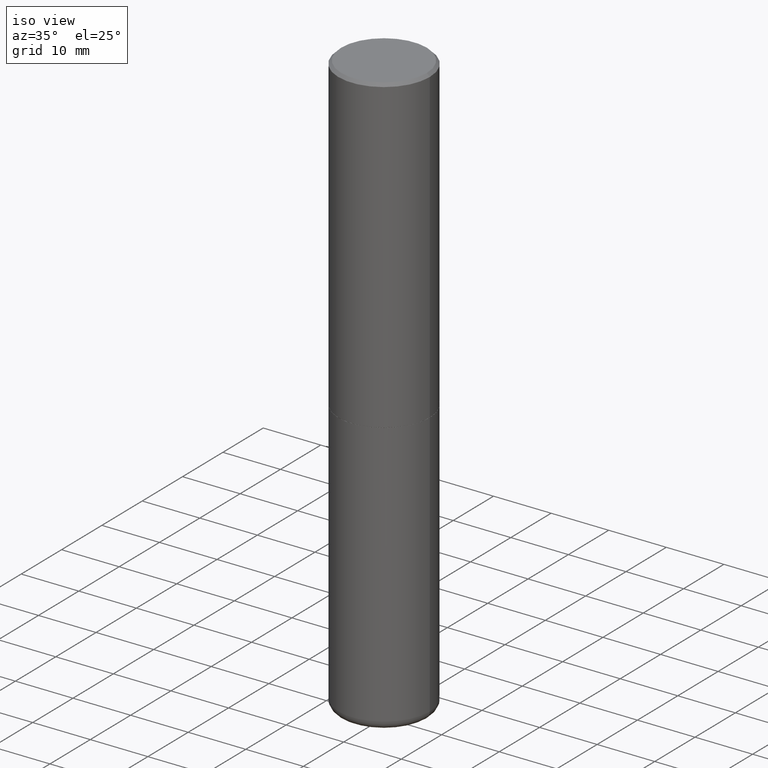
[diagram: clean part render]
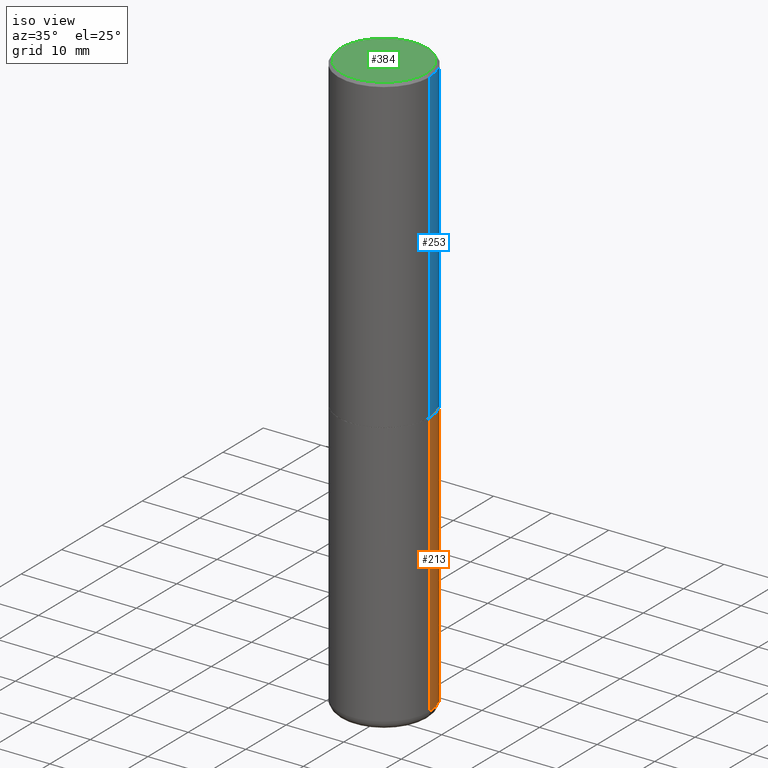
[diagram: same view with three faces highlighted in distinct colors, each labeled with its STEP entity id]
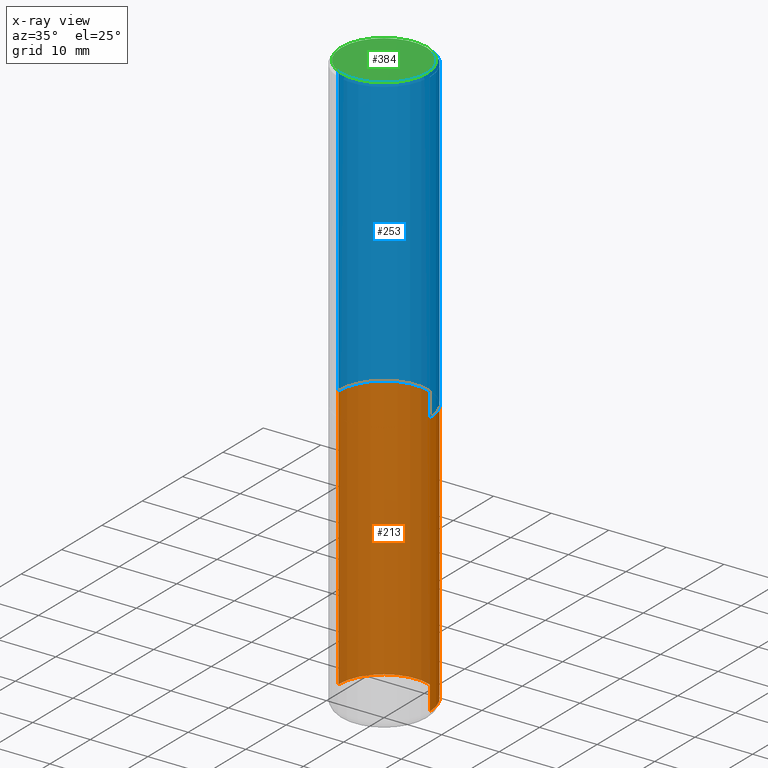
[diagram: x-ray of the same camera — body ghosted, the three highlighted faces saturated]
A machine part, iso view with three faces highlighted in distinct colors.
The next image is the same camera in x-ray (body ghosted, the three faces saturated) — at least one of them is partly hidden behind the body in this view.
Their STEP definitions:

[orange] entity #213 — the highlighted cylindrical surface (partial cylindrical patch) has radius 7.9375 mm, axis along (-0, 0, 1).
#11 = AXIS2_PLACEMENT_3D ( 'NONE', #30, #174, #19 ) ;
#19 = DIRECTION ( 'NONE',  ( 1.000000000000000000, -6.982962677686269077E-15, 0.000000000000000000 ) ) ;
#24 = VERTEX_POINT ( 'NONE', #129 ) ;
#30 = CARTESIAN_POINT ( 'NONE',  ( 9.635147096369438236E-29, -1.375643647504199401E-14, -3.939999999999999947 ) ) ;
#50 = EDGE_CURVE ( 'NONE', #227, #382, #120, .T. ) ;
#66 = ORIENTED_EDGE ( 'NONE', *, *, #50, .T. ) ;
#75 = DIRECTION ( 'NONE',  ( -2.445468806185136597E-29, 3.491481338843145583E-15, 1.000000000000000000 ) ) ;
#78 = DIRECTION ( 'NONE',  ( -2.445468806185136877E-29, 3.491481338843145188E-15, 1.000000000000000000 ) ) ;
#91 = DIRECTION ( 'NONE',  ( 1.000000000000000000, -6.982962677686266711E-15, 4.876176775795936353E-29 ) ) ;
#96 = EDGE_LOOP ( 'NONE', ( #66, #157, #259, #331 ) ) ;
#118 = CARTESIAN_POINT ( 'NONE',  ( 5.196621213143415268E-29, -7.419397845041683624E-15, -2.125000000000000000 ) ) ;
#120 = CIRCLE ( 'NONE', #11, 0.3125000000000000000 ) ;
#125 = CARTESIAN_POINT ( 'NONE',  ( 0.000000000000000000, 0.000000000000000000, 0.000000000000000000 ) ) ;
#129 = CARTESIAN_POINT ( 'NONE',  ( 0.3125000000000000000, -9.601573681818641971E-15, -2.125000000000000000 ) ) ;
#157 = ORIENTED_EDGE ( 'NONE', *, *, #182, .T. ) ;
#165 = CARTESIAN_POINT ( 'NONE',  ( -0.3125000000000001665, -1.153599042579167936E-14, -3.939999999999999947 ) ) ;
#174 = DIRECTION ( 'NONE',  ( -2.445468806185136597E-29, 3.491481338843145583E-15, 1.000000000000000000 ) ) ;
#182 = EDGE_CURVE ( 'NONE', #382, #352, #398, .T. ) ;
#192 = LINE ( 'NONE', #403, #316 ) ;
#209 = CARTESIAN_POINT ( 'NONE',  ( -0.3125000000000000000, -8.367471110791524949E-15, -2.125000000000000000 ) ) ;
#213 = ADVANCED_FACE ( 'NONE', ( #265 ), #319, .T. ) ;
#227 = VERTEX_POINT ( 'NONE', #381 ) ;
#238 = DIRECTION ( 'NONE',  ( -2.445468806185136597E-29, 3.491481338843145583E-15, 1.000000000000000000 ) ) ;
#246 = DIRECTION ( 'NONE',  ( -2.445468806185136877E-29, 3.491481338843145188E-15, 1.000000000000000000 ) ) ;
#259 = ORIENTED_EDGE ( 'NONE', *, *, #276, .F. ) ;
#265 = FACE_OUTER_BOUND ( 'NONE', #96, .T. ) ;
#276 = EDGE_CURVE ( 'NONE', #24, #352, #295, .T. ) ;
#295 = CIRCLE ( 'NONE', #361, 0.3125000000000000000 ) ;
#299 = EDGE_CURVE ( 'NONE', #227, #24, #192, .T. ) ;
#309 = VECTOR ( 'NONE', #78, 39.37007874015748143 ) ;
#316 = VECTOR ( 'NONE', #246, 39.37007874015748143 ) ;
#319 = CYLINDRICAL_SURFACE ( 'NONE', #322, 0.3125000000000000000 ) ;
#322 = AXIS2_PLACEMENT_3D ( 'NONE', #125, #75, #91 ) ;
#331 = ORIENTED_EDGE ( 'NONE', *, *, #299, .F. ) ;
#345 = DIRECTION ( 'NONE',  ( 1.000000000000000000, -6.982962677686269077E-15, 0.000000000000000000 ) ) ;
#352 = VERTEX_POINT ( 'NONE', #209 ) ;
#361 = AXIS2_PLACEMENT_3D ( 'NONE', #118, #238, #345 ) ;
#373 = CARTESIAN_POINT ( 'NONE',  ( -0.3125000000000000000, 2.220446049250313081E-15, -1.537167215704658232E-29 ) ) ;
#381 = CARTESIAN_POINT ( 'NONE',  ( 0.3125000000000001665, -1.593861231181895394E-14, -3.939999999999999947 ) ) ;
#382 = VERTEX_POINT ( 'NONE', #165 ) ;
#398 = LINE ( 'NONE', #373, #309 ) ;
#403 = CARTESIAN_POINT ( 'NONE',  ( 0.3125000000000000000, -2.182175836776958347E-15, 1.523805242436230075E-29 ) ) ;

[blue] entity #253 — the highlighted cylindrical surface (partial cylindrical patch) has radius 7.9375 mm, axis along (-0, 0, 1).
#16 = CARTESIAN_POINT ( 'NONE',  ( 0.3125000000000000000, -2.213735251080466911E-15, -0.02000000000000006981 ) ) ;
#18 = DIRECTION ( 'NONE',  ( 1.000000000000000000, -6.982962677686269077E-15, 0.000000000000000000 ) ) ;
#20 = AXIS2_PLACEMENT_3D ( 'NONE', #275, #171, #18 ) ;
#25 = VERTEX_POINT ( 'NONE', #97 ) ;
#31 = ORIENTED_EDGE ( 'NONE', *, *, #245, .F. ) ;
#38 = EDGE_CURVE ( 'NONE', #25, #394, #220, .T. ) ;
#39 = ORIENTED_EDGE ( 'NONE', *, *, #38, .T. ) ;
#40 = AXIS2_PLACEMENT_3D ( 'NONE', #201, #141, #348 ) ;
#44 = CYLINDRICAL_SURFACE ( 'NONE', #260, 0.3125000000000001665 ) ;
#47 = LINE ( 'NONE', #124, #155 ) ;
#55 = VECTOR ( 'NONE', #325, 39.37007874015748143 ) ;
#97 = CARTESIAN_POINT ( 'NONE',  ( -0.3125000000000002776, -1.522421945989534932E-15, -2.123999999999999666 ) ) ;
#109 = EDGE_CURVE ( 'NONE', #297, #25, #254, .T. ) ;
#124 = CARTESIAN_POINT ( 'NONE',  ( 0.3125000000000001665, -2.182175836776959530E-15, 1.523805242436230636E-29 ) ) ;
#139 = CARTESIAN_POINT ( 'NONE',  ( -0.3125000000000000000, 2.112346210000095443E-15, -0.02000000000000006981 ) ) ;
#141 = DIRECTION ( 'NONE',  ( -2.445468806185136597E-29, 3.491481338843145583E-15, 1.000000000000000000 ) ) ;
#155 = VECTOR ( 'NONE', #279, 39.37007874015748143 ) ;
#160 = EDGE_LOOP ( 'NONE', ( #278, #39, #31, #349 ) ) ;
#171 = DIRECTION ( 'NONE',  ( -2.445468806185136597E-29, 3.491481338843145583E-15, 1.000000000000000000 ) ) ;
#189 = CARTESIAN_POINT ( 'NONE',  ( -0.3125000000000001665, 2.220446049250314264E-15, -1.537167215704658792E-29 ) ) ;
#201 = CARTESIAN_POINT ( 'NONE',  ( 4.890937612370289799E-31, -6.982962677686315028E-17, -0.02000000000000006981 ) ) ;
#220 = LINE ( 'NONE', #189, #55 ) ;
#222 = CIRCLE ( 'NONE', #40, 0.3125000000000000000 ) ;
#245 = EDGE_CURVE ( 'NONE', #411, #394, #222, .T. ) ;
#253 = ADVANCED_FACE ( 'NONE', ( #336 ), #44, .T. ) ;
#254 = CIRCLE ( 'NONE', #20, 0.3125000000000002776 ) ;
#260 = AXIS2_PLACEMENT_3D ( 'NONE', #280, #340, #379 ) ;
#275 = CARTESIAN_POINT ( 'NONE',  ( 5.194175744337229665E-29, -7.415906363702840616E-15, -2.123999999999999666 ) ) ;
#278 = ORIENTED_EDGE ( 'NONE', *, *, #109, .T. ) ;
#279 = DIRECTION ( 'NONE',  ( -2.445468806185136877E-29, 3.491481338843145188E-15, 1.000000000000000000 ) ) ;
#280 = CARTESIAN_POINT ( 'NONE',  ( 0.000000000000000000, 0.000000000000000000, 0.000000000000000000 ) ) ;
#297 = VERTEX_POINT ( 'NONE', #359 ) ;
#325 = DIRECTION ( 'NONE',  ( -2.445468806185136877E-29, 3.491481338843145188E-15, 1.000000000000000000 ) ) ;
#336 = FACE_OUTER_BOUND ( 'NONE', #160, .T. ) ;
#340 = DIRECTION ( 'NONE',  ( -2.445468806185136597E-29, 3.491481338843145583E-15, 1.000000000000000000 ) ) ;
#348 = DIRECTION ( 'NONE',  ( 1.000000000000000000, -6.982962677686266711E-15, 0.000000000000000000 ) ) ;
#349 = ORIENTED_EDGE ( 'NONE', *, *, #355, .F. ) ;
#355 = EDGE_CURVE ( 'NONE', #297, #411, #47, .T. ) ;
#359 = CARTESIAN_POINT ( 'NONE',  ( 0.3125000000000002776, -9.598082200479802119E-15, -2.123999999999999666 ) ) ;
#379 = DIRECTION ( 'NONE',  ( 1.000000000000000000, -6.982962677686266711E-15, 4.876176775795935232E-29 ) ) ;
#394 = VERTEX_POINT ( 'NONE', #139 ) ;
#411 = VERTEX_POINT ( 'NONE', #16 ) ;

[green] entity #384 — the highlighted planar face has unit normal (0, -0, -1).
#4 = DIRECTION ( 'NONE',  ( 2.438088387897960049E-29, -3.491481338843145188E-15, -1.000000000000000000 ) ) ;
#34 = PLANE ( 'NONE',  #187 ) ;
#45 = CARTESIAN_POINT ( 'NONE',  ( 4.906101647375534649E-45, -7.004612900788104277E-31, -2.006200870347193887E-16 ) ) ;
#60 = ORIENTED_EDGE ( 'NONE', *, *, #83, .T. ) ;
#76 = DIRECTION ( 'NONE',  ( 1.000000000000000000, -6.982962677686266711E-15, 4.873475059489872853E-29 ) ) ;
#83 = EDGE_CURVE ( 'NONE', #107, #135, #388, .T. ) ;
#84 = CARTESIAN_POINT ( 'NONE',  ( 4.906101647375534649E-45, -7.004612900788104277E-31, -2.006200870347193887E-16 ) ) ;
#85 = CARTESIAN_POINT ( 'NONE',  ( -0.2925000000000002043, 2.077431396611664583E-15, -2.006200870347337854E-16 ) ) ;
#107 = VERTEX_POINT ( 'NONE', #140 ) ;
#135 = VERTEX_POINT ( 'NONE', #85 ) ;
#140 = CARTESIAN_POINT ( 'NONE',  ( 0.2925000000000002043, -2.110215457714321114E-15, -2.006200870347048687E-16 ) ) ;
#149 = DIRECTION ( 'NONE',  ( -2.445468806185136597E-29, 3.491481338843145583E-15, 1.000000000000000000 ) ) ;
#180 = DIRECTION ( 'NONE',  ( -2.445468806185136597E-29, 3.491481338843145583E-15, 1.000000000000000000 ) ) ;
#187 = AXIS2_PLACEMENT_3D ( 'NONE', #197, #4, #301 ) ;
#194 = AXIS2_PLACEMENT_3D ( 'NONE', #45, #149, #76 ) ;
#197 = CARTESIAN_POINT ( 'NONE',  ( 2.042516583223234117E-15, 0.2925000000000002043, -1.121568335128980438E-15 ) ) ;
#207 = CIRCLE ( 'NONE', #235, 0.2925000000000002043 ) ;
#235 = AXIS2_PLACEMENT_3D ( 'NONE', #84, #180, #404 ) ;
#281 = EDGE_LOOP ( 'NONE', ( #294, #60 ) ) ;
#294 = ORIENTED_EDGE ( 'NONE', *, *, #330, .T. ) ;
#296 = FACE_OUTER_BOUND ( 'NONE', #281, .T. ) ;
#301 = DIRECTION ( 'NONE',  ( -1.000000000000000000, 6.982962677686265922E-15, -4.876176775795935793E-29 ) ) ;
#330 = EDGE_CURVE ( 'NONE', #135, #107, #207, .T. ) ;
#384 = ADVANCED_FACE ( 'NONE', ( #296 ), #34, .F. ) ;
#388 = CIRCLE ( 'NONE', #194, 0.2925000000000002043 ) ;
#404 = DIRECTION ( 'NONE',  ( 1.000000000000000000, -6.982962677686266711E-15, 4.873475059489872853E-29 ) ) ;